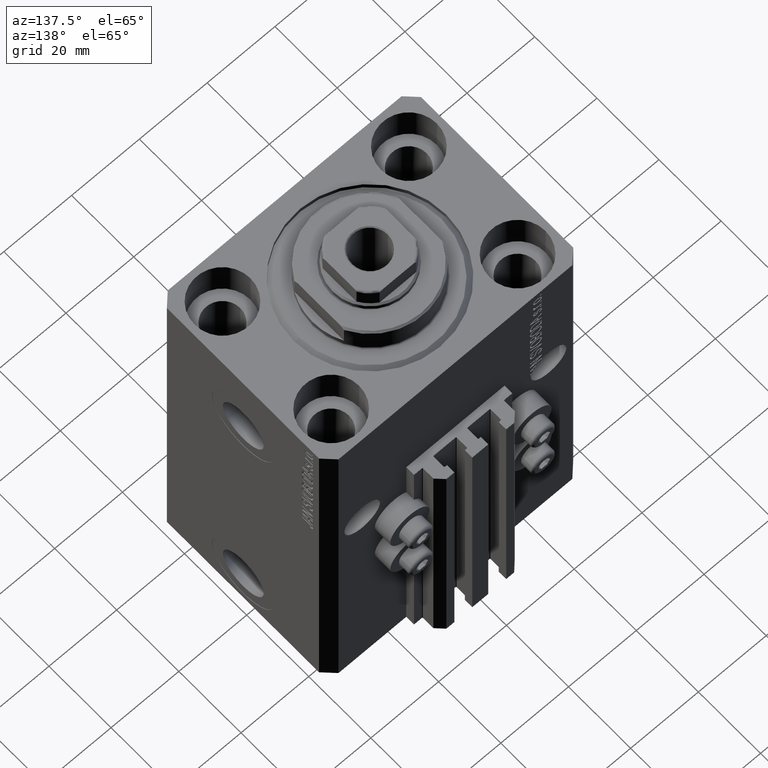
[diagram: clean part render]
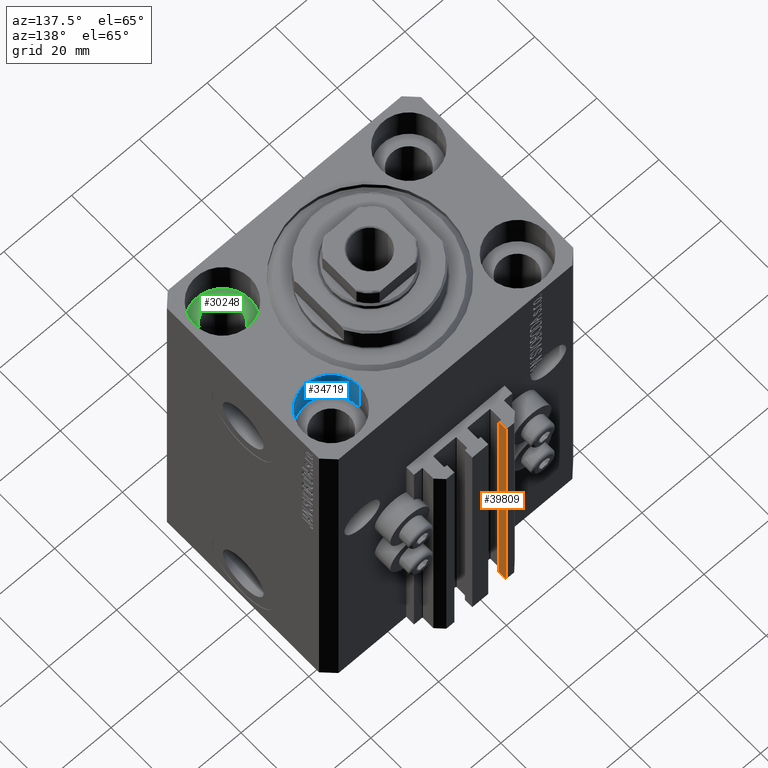
[diagram: same view with three faces highlighted in distinct colors, each labeled with its STEP entity id]
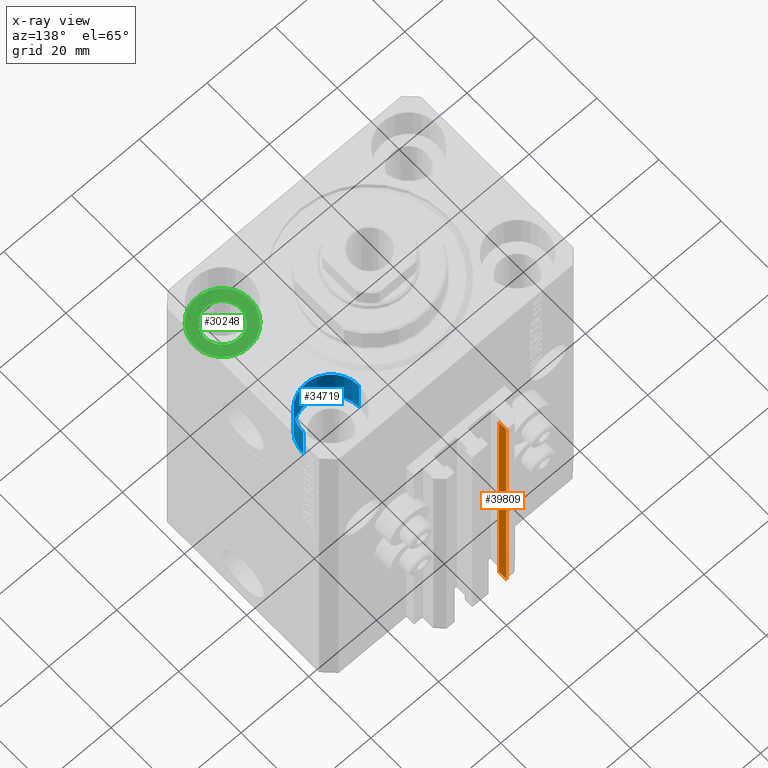
[diagram: x-ray of the same camera — body ghosted, the three highlighted faces saturated]
A machine part, auxiliary view with three faces highlighted in distinct colors.
The next image is the same camera in x-ray (body ghosted, the three faces saturated) — at least one of them is partly hidden behind the body in this view.
Their STEP definitions:

[orange] entity #39809 — the highlighted planar face has unit normal (1, 0, 0).
#5166 = ORIENTED_EDGE ( 'NONE', *, *, #21811, .T. ) ;
#9265 = VERTEX_POINT ( 'NONE', #15090 ) ;
#10010 = VERTEX_POINT ( 'NONE', #12737 ) ;
#10049 = LINE ( 'NONE', #12896, #33572 ) ;
#11056 = LINE ( 'NONE', #39954, #30335 ) ;
#11231 = ORIENTED_EDGE ( 'NONE', *, *, #27557, .F. ) ;
#12737 = CARTESIAN_POINT ( 'NONE',  ( -7.650000000000000355, 35.50000000000000000, -110.0000000000000000 ) ) ;
#12896 = CARTESIAN_POINT ( 'NONE',  ( -7.650000000000000355, 33.09999999999999432, -110.0000000000000000 ) ) ;
#15090 = CARTESIAN_POINT ( 'NONE',  ( -7.650000000000000355, 33.09999999999999432, -33.00000000000000000 ) ) ;
#15110 = CARTESIAN_POINT ( 'NONE',  ( -7.650000000000000355, 35.50000000000000000, -110.0000000000000000 ) ) ;
#15158 = FACE_OUTER_BOUND ( 'NONE', #40550, .T. ) ;
#16846 = CARTESIAN_POINT ( 'NONE',  ( -7.650000000000000355, 35.50000000000000000, -33.00000000000000000 ) ) ;
#18354 = DIRECTION ( 'NONE',  ( 0.000000000000000000, 1.000000000000000000, 0.000000000000000000 ) ) ;
#18446 = LINE ( 'NONE', #15110, #21560 ) ;
#19045 = ORIENTED_EDGE ( 'NONE', *, *, #32260, .T. ) ;
#21560 = VECTOR ( 'NONE', #45308, 1000.000000000000000 ) ;
#21811 = EDGE_CURVE ( 'NONE', #45885, #10010, #11056, .T. ) ;
#24868 = VERTEX_POINT ( 'NONE', #16846 ) ;
#27557 = EDGE_CURVE ( 'NONE', #45885, #9265, #10049, .T. ) ;
#29619 = PLANE ( 'NONE',  #45215 ) ;
#30160 = LINE ( 'NONE', #37474, #36175 ) ;
#30335 = VECTOR ( 'NONE', #34583, 1000.000000000000000 ) ;
#31742 = ORIENTED_EDGE ( 'NONE', *, *, #41792, .F. ) ;
#32260 = EDGE_CURVE ( 'NONE', #10010, #24868, #18446, .T. ) ;
#33572 = VECTOR ( 'NONE', #35165, 1000.000000000000000 ) ;
#34583 = DIRECTION ( 'NONE',  ( 0.000000000000000000, 1.000000000000000000, 0.000000000000000000 ) ) ;
#35165 = DIRECTION ( 'NONE',  ( 0.000000000000000000, 0.000000000000000000, 1.000000000000000000 ) ) ;
#35626 = CARTESIAN_POINT ( 'NONE',  ( -7.650000000000000355, 33.09999999999999432, -110.0000000000000000 ) ) ;
#36175 = VECTOR ( 'NONE', #18354, 1000.000000000000000 ) ;
#36697 = CARTESIAN_POINT ( 'NONE',  ( -7.650000000000000355, 33.09999999999999432, -110.0000000000000000 ) ) ;
#37474 = CARTESIAN_POINT ( 'NONE',  ( -7.650000000000000355, 33.09999999999999432, -33.00000000000000000 ) ) ;
#39781 = DIRECTION ( 'NONE',  ( 0.000000000000000000, 0.000000000000000000, -1.000000000000000000 ) ) ;
#39809 = ADVANCED_FACE ( 'NONE', ( #15158 ), #29619, .T. ) ;
#39954 = CARTESIAN_POINT ( 'NONE',  ( -7.650000000000000355, 33.09999999999999432, -110.0000000000000000 ) ) ;
#40550 = EDGE_LOOP ( 'NONE', ( #31742, #11231, #5166, #19045 ) ) ;
#40726 = DIRECTION ( 'NONE',  ( 1.000000000000000000, 0.000000000000000000, 0.000000000000000000 ) ) ;
#41792 = EDGE_CURVE ( 'NONE', #9265, #24868, #30160, .T. ) ;
#45215 = AXIS2_PLACEMENT_3D ( 'NONE', #36697, #40726, #39781 ) ;
#45308 = DIRECTION ( 'NONE',  ( 0.000000000000000000, 0.000000000000000000, 1.000000000000000000 ) ) ;
#45885 = VERTEX_POINT ( 'NONE', #35626 ) ;

[blue] entity #34719 — the highlighted cylindrical surface (partial cylindrical patch) has radius 8.25 mm, axis along (0, 0, 1).
#311 = DIRECTION ( 'NONE',  ( -0.000000000000000000, -0.000000000000000000, 1.000000000000000000 ) ) ;
#392 = FACE_OUTER_BOUND ( 'NONE', #27670, .T. ) ;
#1164 = CARTESIAN_POINT ( 'NONE',  ( 19.25000000000000000, 17.50000000000001066, -11.00000000000000000 ) ) ;
#3964 = CARTESIAN_POINT ( 'NONE',  ( 27.49999999999999645, 17.50000000000001066, -11.00000000000000000 ) ) ;
#4401 = CARTESIAN_POINT ( 'NONE',  ( 35.74999999999999289, 17.50000000000001066, -11.00000000000000000 ) ) ;
#6290 = VERTEX_POINT ( 'NONE', #17790 ) ;
#7406 = CIRCLE ( 'NONE', #23314, 8.249999999999992895 ) ;
#14614 = CARTESIAN_POINT ( 'NONE',  ( 27.49999999999999645, 17.50000000000001066, -11.00000000000000000 ) ) ;
#14915 = CARTESIAN_POINT ( 'NONE',  ( 35.74999999999999289, 17.50000000000001066, 0.000000000000000000 ) ) ;
#15538 = EDGE_CURVE ( 'NONE', #34219, #25713, #7406, .T. ) ;
#17790 = CARTESIAN_POINT ( 'NONE',  ( 19.25000000000000000, 17.50000000000001066, 0.000000000000000000 ) ) ;
#19986 = CIRCLE ( 'NONE', #32097, 8.249999999999992895 ) ;
#20388 = DIRECTION ( 'NONE',  ( 0.000000000000000000, 0.000000000000000000, 1.000000000000000000 ) ) ;
#21746 = CYLINDRICAL_SURFACE ( 'NONE', #23882, 8.249999999999992895 ) ;
#23314 = AXIS2_PLACEMENT_3D ( 'NONE', #3964, #25306, #39720 ) ;
#23831 = EDGE_CURVE ( 'NONE', #34219, #6290, #33615, .T. ) ;
#23882 = AXIS2_PLACEMENT_3D ( 'NONE', #14614, #36636, #36411 ) ;
#24896 = CARTESIAN_POINT ( 'NONE',  ( 19.25000000000000000, 17.50000000000001066, -11.00000000000000000 ) ) ;
#24913 = VECTOR ( 'NONE', #311, 1000.000000000000000 ) ;
#25306 = DIRECTION ( 'NONE',  ( 0.000000000000000000, 0.000000000000000000, 1.000000000000000000 ) ) ;
#25596 = ORIENTED_EDGE ( 'NONE', *, *, #45914, .F. ) ;
#25711 = CARTESIAN_POINT ( 'NONE',  ( 35.74999999999999289, 17.50000000000001066, -11.00000000000000000 ) ) ;
#25713 = VERTEX_POINT ( 'NONE', #4401 ) ;
#27670 = EDGE_LOOP ( 'NONE', ( #41033, #28989, #38962, #25596 ) ) ;
#28989 = ORIENTED_EDGE ( 'NONE', *, *, #23831, .T. ) ;
#31029 = EDGE_CURVE ( 'NONE', #6290, #44150, #19986, .T. ) ;
#32097 = AXIS2_PLACEMENT_3D ( 'NONE', #37903, #20388, #34602 ) ;
#33615 = LINE ( 'NONE', #1164, #43237 ) ;
#34219 = VERTEX_POINT ( 'NONE', #24896 ) ;
#34602 = DIRECTION ( 'NONE',  ( 1.000000000000000000, 0.000000000000000000, 0.000000000000000000 ) ) ;
#34719 = ADVANCED_FACE ( 'NONE', ( #392 ), #21746, .F. ) ;
#36411 = DIRECTION ( 'NONE',  ( 1.000000000000000000, 0.000000000000000000, 0.000000000000000000 ) ) ;
#36553 = LINE ( 'NONE', #25711, #24913 ) ;
#36636 = DIRECTION ( 'NONE',  ( -0.000000000000000000, -0.000000000000000000, 1.000000000000000000 ) ) ;
#37903 = CARTESIAN_POINT ( 'NONE',  ( 27.49999999999999645, 17.50000000000001066, 0.000000000000000000 ) ) ;
#38962 = ORIENTED_EDGE ( 'NONE', *, *, #31029, .T. ) ;
#39720 = DIRECTION ( 'NONE',  ( 1.000000000000000000, 0.000000000000000000, 0.000000000000000000 ) ) ;
#41033 = ORIENTED_EDGE ( 'NONE', *, *, #15538, .F. ) ;
#41413 = DIRECTION ( 'NONE',  ( -0.000000000000000000, -0.000000000000000000, 1.000000000000000000 ) ) ;
#43237 = VECTOR ( 'NONE', #41413, 1000.000000000000000 ) ;
#44150 = VERTEX_POINT ( 'NONE', #14915 ) ;
#45914 = EDGE_CURVE ( 'NONE', #25713, #44150, #36553, .T. ) ;

[green] entity #30248 — the highlighted planar face has unit normal (0, 0, 1).
#179 = VERTEX_POINT ( 'NONE', #23449 ) ;
#1965 = AXIS2_PLACEMENT_3D ( 'NONE', #25205, #25696, #14516 ) ;
#1975 = EDGE_CURVE ( 'NONE', #37878, #179, #25261, .T. ) ;
#2163 = CARTESIAN_POINT ( 'NONE',  ( 19.25000000000000000, -17.50000000000000000, -11.00000000000000000 ) ) ;
#3892 = DIRECTION ( 'NONE',  ( 0.000000000000000000, 0.000000000000000000, 1.000000000000000000 ) ) ;
#5732 = CIRCLE ( 'NONE', #1965, 8.250000000000000000 ) ;
#7083 = DIRECTION ( 'NONE',  ( 0.000000000000000000, 0.000000000000000000, 1.000000000000000000 ) ) ;
#7215 = EDGE_CURVE ( 'NONE', #23757, #32629, #5732, .T. ) ;
#10512 = PLANE ( 'NONE',  #28306 ) ;
#11610 = CIRCLE ( 'NONE', #25257, 5.249999999999997335 ) ;
#14516 = DIRECTION ( 'NONE',  ( 1.000000000000000000, 0.000000000000000000, 0.000000000000000000 ) ) ;
#14530 = FACE_BOUND ( 'NONE', #38303, .T. ) ;
#16929 = ORIENTED_EDGE ( 'NONE', *, *, #7215, .T. ) ;
#18887 = DIRECTION ( 'NONE',  ( 0.000000000000000000, 0.000000000000000000, 1.000000000000000000 ) ) ;
#23449 = CARTESIAN_POINT ( 'NONE',  ( 32.75000000000000000, -17.50000000000000000, -11.00000000000000000 ) ) ;
#23757 = VERTEX_POINT ( 'NONE', #26771 ) ;
#24918 = AXIS2_PLACEMENT_3D ( 'NONE', #46881, #7083, #35289 ) ;
#25205 = CARTESIAN_POINT ( 'NONE',  ( 27.50000000000000355, -17.50000000000000000, -11.00000000000000000 ) ) ;
#25257 = AXIS2_PLACEMENT_3D ( 'NONE', #26455, #18887, #40865 ) ;
#25261 = CIRCLE ( 'NONE', #31275, 5.249999999999997335 ) ;
#25317 = EDGE_CURVE ( 'NONE', #179, #37878, #11610, .T. ) ;
#25467 = CARTESIAN_POINT ( 'NONE',  ( 27.50000000000000355, -17.50000000000000000, -11.00000000000000000 ) ) ;
#25696 = DIRECTION ( 'NONE',  ( 0.000000000000000000, 0.000000000000000000, 1.000000000000000000 ) ) ;
#26455 = CARTESIAN_POINT ( 'NONE',  ( 27.50000000000000355, -17.50000000000000000, -11.00000000000000000 ) ) ;
#26771 = CARTESIAN_POINT ( 'NONE',  ( 35.75000000000000711, -17.50000000000000000, -11.00000000000000000 ) ) ;
#27771 = ORIENTED_EDGE ( 'NONE', *, *, #42915, .T. ) ;
#27933 = ORIENTED_EDGE ( 'NONE', *, *, #25317, .F. ) ;
#28306 = AXIS2_PLACEMENT_3D ( 'NONE', #25467, #36328, #32776 ) ;
#28312 = FACE_OUTER_BOUND ( 'NONE', #35504, .T. ) ;
#30248 = ADVANCED_FACE ( 'NONE', ( #14530, #28312 ), #10512, .T. ) ;
#31275 = AXIS2_PLACEMENT_3D ( 'NONE', #40353, #3892, #32559 ) ;
#32559 = DIRECTION ( 'NONE',  ( 1.000000000000000000, 0.000000000000000000, 0.000000000000000000 ) ) ;
#32629 = VERTEX_POINT ( 'NONE', #2163 ) ;
#32776 = DIRECTION ( 'NONE',  ( 1.000000000000000000, 0.000000000000000000, -0.000000000000000000 ) ) ;
#35289 = DIRECTION ( 'NONE',  ( 1.000000000000000000, 0.000000000000000000, 0.000000000000000000 ) ) ;
#35504 = EDGE_LOOP ( 'NONE', ( #16929, #27771 ) ) ;
#36328 = DIRECTION ( 'NONE',  ( 0.000000000000000000, 0.000000000000000000, 1.000000000000000000 ) ) ;
#37698 = ORIENTED_EDGE ( 'NONE', *, *, #1975, .F. ) ;
#37878 = VERTEX_POINT ( 'NONE', #46641 ) ;
#38303 = EDGE_LOOP ( 'NONE', ( #27933, #37698 ) ) ;
#40353 = CARTESIAN_POINT ( 'NONE',  ( 27.50000000000000355, -17.50000000000000000, -11.00000000000000000 ) ) ;
#40865 = DIRECTION ( 'NONE',  ( 1.000000000000000000, 0.000000000000000000, 0.000000000000000000 ) ) ;
#42915 = EDGE_CURVE ( 'NONE', #32629, #23757, #43054, .T. ) ;
#43054 = CIRCLE ( 'NONE', #24918, 8.250000000000000000 ) ;
#46641 = CARTESIAN_POINT ( 'NONE',  ( 22.25000000000000711, -17.50000000000000000, -11.00000000000000000 ) ) ;
#46881 = CARTESIAN_POINT ( 'NONE',  ( 27.50000000000000355, -17.50000000000000000, -11.00000000000000000 ) ) ;